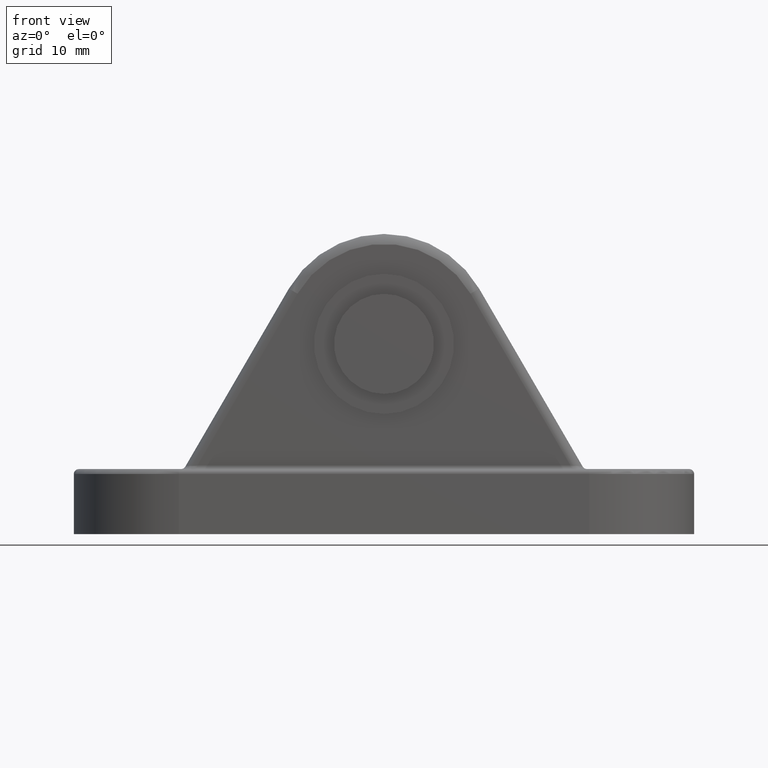
[diagram: clean part render]
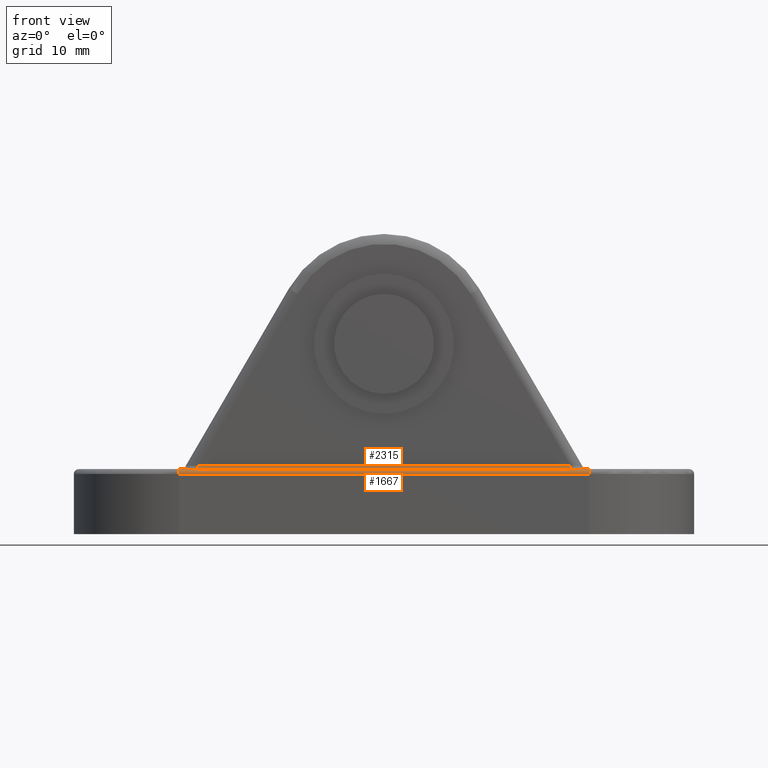
[diagram: same view with one multi-face feature highlighted, each face labeled with its STEP entity id]
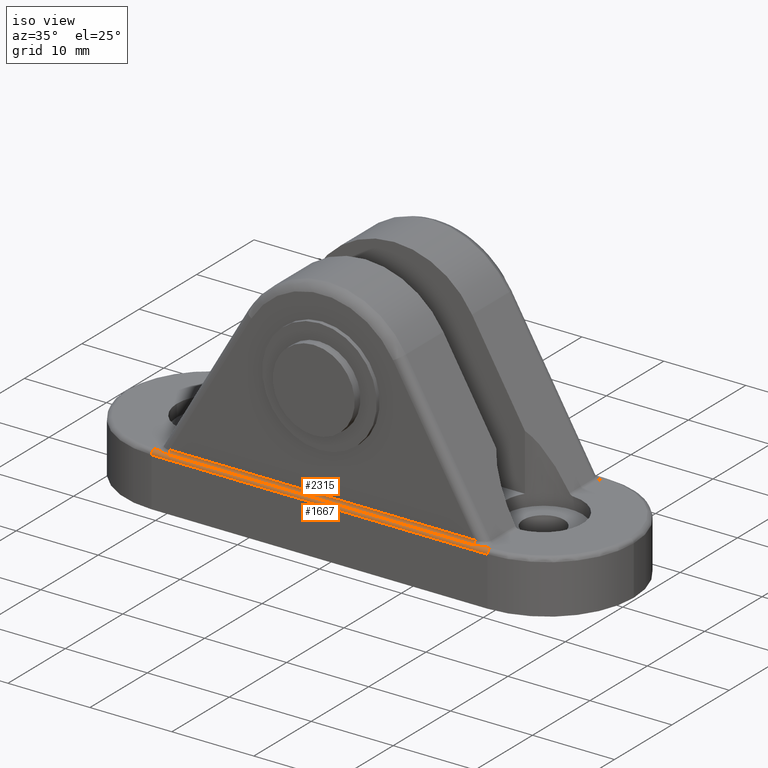
[diagram: same view with one multi-face feature highlighted, each face labeled with its STEP entity id]
A machine part, front view. The highlighted faces form ONE feature: a constant-radius fillet chain: 2 tangent blend faces with common blend radius 0.5 mm. The faces share edges in the B-rep.
A second angle (iso view) of the same feature is appended — it is thin or edge-on in the first view.
Their STEP definitions:
[1] entity #1667 (Cylinder):
#902=CARTESIAN_POINT('',(-20.500000000000000,0.0,6.000000000000043));
#903=VERTEX_POINT('',#902);
#1010=CARTESIAN_POINT('',(20.500000000000014,0.0,5.999999999999986));
#1011=VERTEX_POINT('',#1010);
#1035=CARTESIAN_POINT('',(20.500000000000014,0.0,5.999999999999986));
#1036=DIRECTION('',(-1.0,0.0,0.0));
#1037=VECTOR('',#1036,41.000000000000014);
#1038=LINE('',#1035,#1037);
#1039=EDGE_CURVE('',#1011,#903,#1038,.T.);
#1133=CARTESIAN_POINT('',(20.500000000000014,0.500000000000000,6.499999999999986));
#1134=VERTEX_POINT('',#1133);
#1142=CARTESIAN_POINT('',(20.500000000000014,0.500000000000000,5.999999999999986));
#1143=DIRECTION('',(-1.0,-1.776357E-015,1.386425E-015));
#1144=DIRECTION('',(1.776357E-015,-1.0,6.123234E-017));
#1145=AXIS2_PLACEMENT_3D('',#1142,#1143,#1144);
#1146=CIRCLE('',#1145,0.500000000000000);
#1147=EDGE_CURVE('',#1011,#1134,#1146,.T.);
#1436=CARTESIAN_POINT('',(-20.500000000000000,0.500000000000000,6.500000000000043));
#1437=VERTEX_POINT('',#1436);
#1438=CARTESIAN_POINT('',(-20.500000000000000,0.499999999999925,6.000000000000043));
#1439=DIRECTION('',(1.0,1.776357E-015,-1.386425E-015));
#1440=DIRECTION('',(1.776357E-015,-1.0,6.123234E-017));
#1441=AXIS2_PLACEMENT_3D('',#1438,#1439,#1440);
#1442=CIRCLE('',#1441,0.500000000000000);
#1443=EDGE_CURVE('',#1437,#903,#1442,.T.);
#1612=CARTESIAN_POINT('',(20.500000000000014,0.500000000000000,5.999999999999986));
#1613=DIRECTION('',(-1.0,-1.776357E-015,1.386425E-015));
#1614=DIRECTION('',(1.776357E-015,-1.0,6.123234E-017));
#1615=AXIS2_PLACEMENT_3D('',#1612,#1613,#1614);
#1616=CYLINDRICAL_SURFACE('',#1615,0.500000000000000);
#1617=ORIENTED_EDGE('',*,*,#1147,.T.);
#1618=CARTESIAN_POINT('',(19.845626732760444,0.500000000000000,6.499999999999986));
#1619=VERTEX_POINT('',#1618);
#1620=CARTESIAN_POINT('',(20.500000000000014,0.500000000000000,6.499999999999986));
#1621=DIRECTION('',(-1.0,0.0,0.0));
#1622=VECTOR('',#1621,0.654373267239571);
#1623=LINE('',#1620,#1622);
#1624=EDGE_CURVE('',#1134,#1619,#1623,.T.);
#1625=ORIENTED_EDGE('',*,*,#1624,.T.);
#1626=CARTESIAN_POINT('',(18.630054364826695,0.249999999999996,6.433012701892210));
#1627=VERTEX_POINT('',#1626);
#1628=CARTESIAN_POINT('',(19.845626732760444,0.500000000000000,6.499999999999986));
#1629=CARTESIAN_POINT('',(19.740031583200363,0.448979098522258,6.499999999999986));
#1630=CARTESIAN_POINT('',(19.547397944593328,0.372510096948158,6.486697476576012));
#1631=CARTESIAN_POINT('',(19.253989826221197,0.301500435760982,6.459851891412626));
#1632=CARTESIAN_POINT('',(18.961634525345197,0.259672294495260,6.438934288199562));
#1633=CARTESIAN_POINT('',(18.753797635180398,0.250000000000000,6.433012701892210));
#1634=CARTESIAN_POINT('',(18.630054364826684,0.250000000000000,6.433012701892210));
#1635=B_SPLINE_CURVE_WITH_KNOTS('',3,(#1628,#1629,#1630,#1631,#1632,#1633,#1634),.UNSPECIFIED.,.F.,.U.,(4,1,1,1,4),(0.0,0.406743018702441,0.678843167916658,0.911295391286832,1.254054072765633),.UNSPECIFIED.);
#1636=EDGE_CURVE('',#1619,#1627,#1635,.T.);
#1637=ORIENTED_EDGE('',*,*,#1636,.T.);
#1638=CARTESIAN_POINT('',(-18.630054364826634,0.249999999999929,6.433012701892267));
#1639=VERTEX_POINT('',#1638);
#1640=CARTESIAN_POINT('',(18.630054364826695,0.249999999999997,6.433012701892213));
#1641=DIRECTION('',(-1.0,0.0,0.0));
#1642=VECTOR('',#1641,37.260108729653325);
#1643=LINE('',#1640,#1642);
#1644=EDGE_CURVE('',#1627,#1639,#1643,.T.);
#1645=ORIENTED_EDGE('',*,*,#1644,.T.);
#1646=CARTESIAN_POINT('',(-19.845626732760408,0.500000000000004,6.500000000000043));
#1647=VERTEX_POINT('',#1646);
#1648=CARTESIAN_POINT('',(-18.630054364826634,0.249999999999929,6.433012701892267));
#1649=CARTESIAN_POINT('',(-18.765985857372392,0.249999999999929,6.433012701892267));
#1650=CARTESIAN_POINT('',(-19.000767148846876,0.262069750879249,6.440448414865514));
#1651=CARTESIAN_POINT('',(-19.428609578688160,0.331622600821756,6.474216179969446));
#1652=CARTESIAN_POINT('',(-19.688737035462943,0.424194872377704,6.500000000000043));
#1653=CARTESIAN_POINT('',(-19.845626732760472,0.499999999999929,6.500000000000043));
#1654=B_SPLINE_CURVE_WITH_KNOTS('',3,(#1648,#1649,#1650,#1651,#1652,#1653),.UNSPECIFIED.,.F.,.U.,(4,1,1,4),(0.0,0.376513249280312,0.649735106875062,1.254050792356654),.UNSPECIFIED.);
#1655=EDGE_CURVE('',#1639,#1647,#1654,.T.);
#1656=ORIENTED_EDGE('',*,*,#1655,.T.);
#1657=CARTESIAN_POINT('',(-19.845626732760408,0.500000000000000,6.500000000000042));
#1658=DIRECTION('',(-1.0,0.0,0.0));
#1659=VECTOR('',#1658,0.654373267239592);
#1660=LINE('',#1657,#1659);
#1661=EDGE_CURVE('',#1647,#1437,#1660,.T.);
#1662=ORIENTED_EDGE('',*,*,#1661,.T.);
#1663=ORIENTED_EDGE('',*,*,#1443,.T.);
#1664=ORIENTED_EDGE('',*,*,#1039,.F.);
#1665=EDGE_LOOP('',(#1617,#1625,#1637,#1645,#1656,#1662,#1663,#1664));
#1666=FACE_OUTER_BOUND('',#1665,.T.);
#1667=ADVANCED_FACE('',(#1666),#1616,.T.);
[2] entity #2315 (Cylinder):
#1626=CARTESIAN_POINT('',(18.630054364826695,0.249999999999996,6.433012701892210));
#1627=VERTEX_POINT('',#1626);
#1638=CARTESIAN_POINT('',(-18.630054364826634,0.249999999999929,6.433012701892267));
#1639=VERTEX_POINT('',#1638);
#1640=CARTESIAN_POINT('',(18.630054364826695,0.249999999999997,6.433012701892213));
#1641=DIRECTION('',(-1.0,0.0,0.0));
#1642=VECTOR('',#1641,37.260108729653325);
#1643=LINE('',#1640,#1642);
#1644=EDGE_CURVE('',#1627,#1639,#1643,.T.);
#1696=CARTESIAN_POINT('',(-18.630054364826634,0.500000000000000,6.866025403784477));
#1697=VERTEX_POINT('',#1696);
#1723=CARTESIAN_POINT('',(18.630054364826695,0.500000000000000,6.866025403784420));
#1724=VERTEX_POINT('',#1723);
#2181=CARTESIAN_POINT('',(18.630054364826695,0.500000000000000,6.866025403784420));
#2182=DIRECTION('',(-1.0,0.0,0.0));
#2183=VECTOR('',#2182,37.260108729653325);
#2184=LINE('',#2181,#2183);
#2185=EDGE_CURVE('',#1724,#1697,#2184,.T.);
#2292=CARTESIAN_POINT('',(18.630054364826695,1.746811E-031,6.866025403784422));
#2293=DIRECTION('',(-1.0,9.341507E-032,1.525584E-015));
#2294=DIRECTION('',(0.0,1.0,-6.123234E-017));
#2295=AXIS2_PLACEMENT_3D('',#2292,#2293,#2294);
#2296=CYLINDRICAL_SURFACE('',#2295,0.500000000000000);
#2297=ORIENTED_EDGE('',*,*,#2185,.T.);
#2298=CARTESIAN_POINT('',(-18.630054364826634,1.469454E-032,6.866025403784477));
#2299=DIRECTION('',(1.0,-9.341507E-032,-1.525584E-015));
#2300=DIRECTION('',(0.0,1.0,-6.123234E-017));
#2301=AXIS2_PLACEMENT_3D('',#2298,#2299,#2300);
#2302=CIRCLE('',#2301,0.500000000000000);
#2303=EDGE_CURVE('',#1639,#1697,#2302,.T.);
#2304=ORIENTED_EDGE('',*,*,#2303,.F.);
#2305=ORIENTED_EDGE('',*,*,#1644,.F.);
#2306=CARTESIAN_POINT('',(18.630054364826695,-1.469454E-032,6.866025403784420));
#2307=DIRECTION('',(-1.0,9.341507E-032,1.525584E-015));
#2308=DIRECTION('',(0.0,1.0,-6.123234E-017));
#2309=AXIS2_PLACEMENT_3D('',#2306,#2307,#2308);
#2310=CIRCLE('',#2309,0.500000000000000);
#2311=EDGE_CURVE('',#1724,#1627,#2310,.T.);
#2312=ORIENTED_EDGE('',*,*,#2311,.F.);
#2313=EDGE_LOOP('',(#2297,#2304,#2305,#2312));
#2314=FACE_OUTER_BOUND('',#2313,.T.);
#2315=ADVANCED_FACE('',(#2314),#2296,.F.);